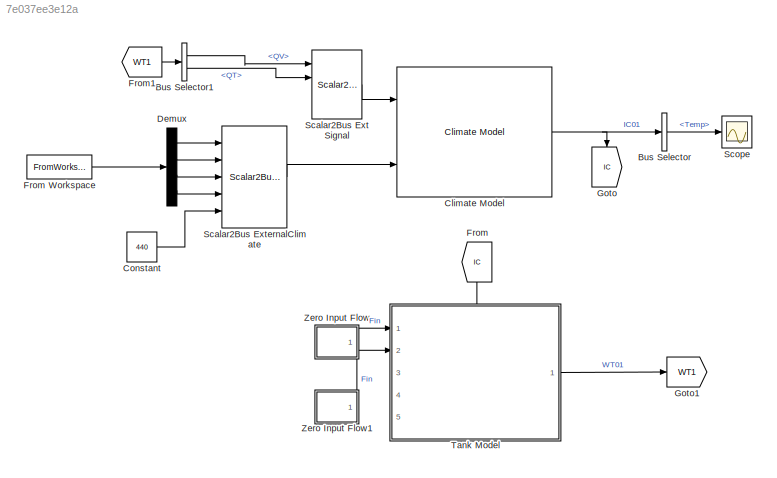
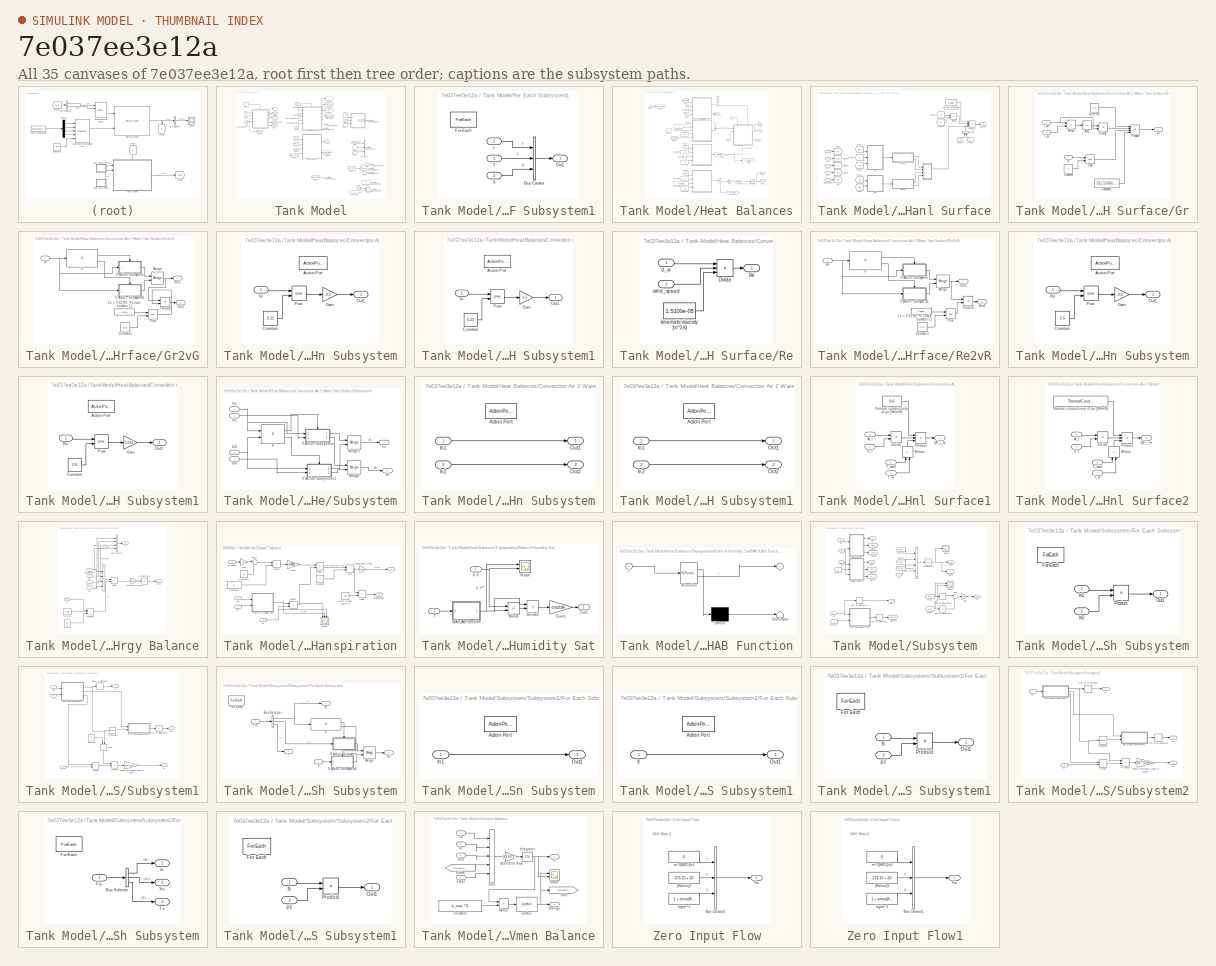
[diagram: thumbnail index - all 35 canvases of the model, root first then tree order]
MODEL slx_7e037ee3e12a
KIND model
CONFIG AbsTol = auto
CONFIG EnableMultiTasking = off
CONFIG FixedStep = auto
CONFIG MaxStep = auto
CONFIG MinStep = auto
CONFIG RelTol = 1e-3
CONFIG SampleTimeConstraint = Unconstrained
CONFIG SolverName = VariableStepAuto
CONFIG StartTime = 0.0
CONFIG StopTime = 10.0
BLOCK [BusSelector] Bus Selector
  OutputSignals = Temp
  Ports = [1, 1]
BLOCK [BusSelector] Bus Selector1
  OutputSignals = QV,QT
  Ports = [1, 2]
BLOCK [Reference] Climate Model  REF=HORTISIM/Climate/Models/Climate Model
  Ports = [3, 1]
  SourceBlock = HORTISIM/Climate/Models/Climate Model
  SourceProductName = Horti Simulator
BLOCK [Constant] Constant
  Value = 440
BLOCK [Demux] Demux
  Ports = [1, 4]
BLOCK [From] From
  GotoTag = IC
  NameLocation = left
BLOCK [FromWorkspace] From Workspace
  VariableName = S01_EC
BLOCK [From] From1
  GotoTag = WT1
BLOCK [Goto] Goto
  GotoTag = IC
  NameLocation = left
BLOCK [Goto] Goto1
  GotoTag = WT1
BLOCK [Reference] Scalar2Bus Ext Signal   REF=HORTISIM/Other 
Functions/Scalar2Bus
Ext Signal 

  Ports = [4, 1]
  SourceBlock = HORTISIM/Other \nFunctions/Scalar2Bus\nExt Signal
  SourceProductName = Horti Simulator
  SourceType = SubSystem
BLOCK [Reference] Scalar2Bus ExternalClimate  REF=HORTISIM/Other 
Functions/Scalar2Bus
ExternalClimate
  Ports = [5, 1]
  SourceBlock = HORTISIM/Other \nFunctions/Scalar2Bus\nExternalClimate
  SourceProductName = Horti Simulator
  SourceType = SubSystem
BLOCK [Scope] Scope
  Floating = off
  NumInputPorts = 1
  Ports = [1]
  ScopeSpecificationString = Simulink.scopes.TimeScopeBlockCfg('CurrentConfiguration', extmgr.ConfigurationSet(extmgr.Configuration('Core','General UI',true),extmgr.Configuration('Core','Source UI',true),extmgr.Configuration('Sources','WiredSimulink',true),extmgr.Configuration('Visuals','Time Domain',true,'SerializedDisplays',{struct('MinYLimReal','280.24378','MaxYLimReal','319.56009','YLabelReal','','MinYLimMag','280.24378',...<+1406ch>
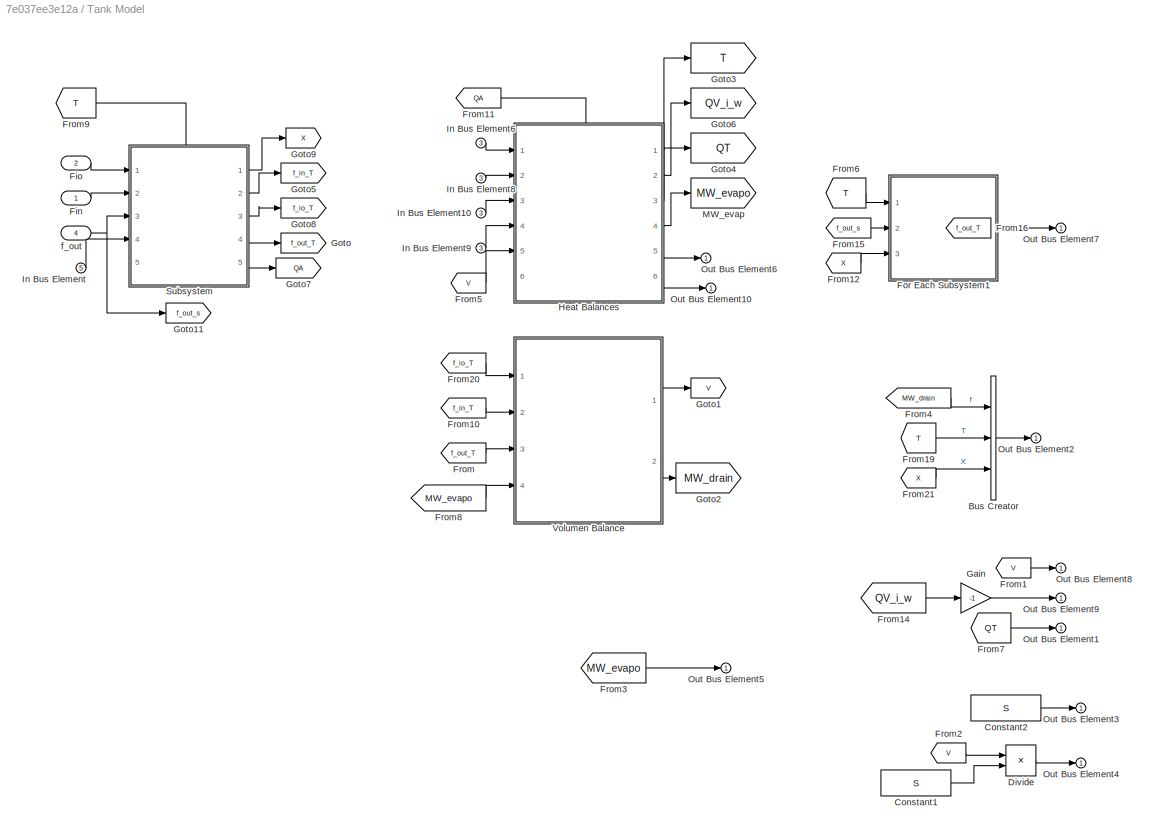
BLOCK [SubSystem] Tank Model
  AncestorBlock = HORTISIM/Aquaculture/Models/Tank Model
  PortSchema = {"entries":[{"content":{"sides":[{"content":{"connectorIds":["In1","In2"]},"type":"ConnectorPlacement.EquallySpacedRectSide","uuid":"0362ec3b-d1e8-482f-a4df-c7eb6405d3bb"},{"content":{"connectorIds":["Out1"],"side":"RIGHT"},"type":"ConnectorPlacement.EquallySpacedRectSide","uuid":"883d7bea-5680-4a36-94aa-1bdc656ec6e4"},{"content":{"connectorIds":["In3"],"side":"TOP"},"type":"ConnectorPlacement.Equ...<+406ch>
  Ports = [5, 1]
  RequestExecContextInheritance = off
BLOCK [BusCreator] Tank Model/Bus Creator
  DisplayOption = bar
  InheritFromInputs = on
  Inputs = 3
  NonVirtualBus = on
  OutDataTypeStr = Bus: FLOW
  Ports = [3, 1]
BLOCK [Constant] Tank Model/Constant1
  Value = S
BLOCK [Constant] Tank Model/Constant2
  Value = S
BLOCK [Product] Tank Model/Divide
  Inputs = */
  Ports = [2, 1]
BLOCK [Inport] Tank Model/Fin
BLOCK [Inport] Tank Model/Fio
  Port = 2
BLOCK [SubSystem] Tank Model/For Each Subsystem1
  Ports = [3, 1]
  RequestExecContextInheritance = off
  TreatAsAtomicUnit = on
BLOCK [BusCreator] Tank Model/For Each Subsystem1/Bus Creator
  DisplayOption = bar
  InheritFromInputs = on
  Inputs = 3
  NonVirtualBus = on
  OutDataTypeStr = Bus: FLOW
  Ports = [3, 1]
BLOCK [ForEach] Tank Model/For Each Subsystem1/For Each
  DisableCoverage = on
  Ports = []
BLOCK [Outport] Tank Model/For Each Subsystem1/Out1
  ConcatenationDimension = 1
BLOCK [Inport] Tank Model/For Each Subsystem1/T
BLOCK [Inport] Tank Model/For Each Subsystem1/X
  Port = 3
BLOCK [Inport] Tank Model/For Each Subsystem1/f
  Partition = on
  PartitionDimension = 1
  PartitionOffset = 0
  PartitionWidth = 1
  Port = 2
BLOCK [From] Tank Model/From
  GotoTag = f_out_T
BLOCK [From] Tank Model/From1
  GotoTag = V
BLOCK [From] Tank Model/From10
  GotoTag = f_in_T
BLOCK [From] Tank Model/From11
  GotoTag = QA
BLOCK [From] Tank Model/From12
  GotoTag = X
BLOCK [From] Tank Model/From14
  GotoTag = QV_i_w
BLOCK [From] Tank Model/From15
  GotoTag = f_out_s
BLOCK [From] Tank Model/From16
  GotoTag = f_out_T
BLOCK [From] Tank Model/From19
  GotoTag = T
BLOCK [From] Tank Model/From2
  GotoTag = V
BLOCK [From] Tank Model/From20
  GotoTag = f_io_T
BLOCK [From] Tank Model/From21
  GotoTag = X
BLOCK [From] Tank Model/From3
  GotoTag = MW_evapo
BLOCK [From] Tank Model/From4
  GotoTag = MW_drain
BLOCK [From] Tank Model/From5
  GotoTag = V
BLOCK [From] Tank Model/From6
  GotoTag = T
BLOCK [From] Tank Model/From7
  GotoTag = QT
BLOCK [From] Tank Model/From8
  GotoTag = MW_evapo
BLOCK [From] Tank Model/From9
  GotoTag = T
BLOCK [Gain] Tank Model/Gain
  Gain = -1
BLOCK [Goto] Tank Model/Goto
  GotoTag = f_out_T
BLOCK [Goto] Tank Model/Goto1
  GotoTag = V
BLOCK [Goto] Tank Model/Goto11
  GotoTag = f_out_s
BLOCK [Goto] Tank Model/Goto2
  GotoTag = MW_drain
BLOCK [Goto] Tank Model/Goto3
  GotoTag = T
BLOCK [Goto] Tank Model/Goto4
  GotoTag = QT
BLOCK [Goto] Tank Model/Goto5
  GotoTag = f_in_T
BLOCK [Goto] Tank Model/Goto6
  GotoTag = QV_i_w
BLOCK [Goto] Tank Model/Goto7
  GotoTag = QA
BLOCK [Goto] Tank Model/Goto8
  GotoTag = f_io_T
BLOCK [Goto] Tank Model/Goto9
  GotoTag = X
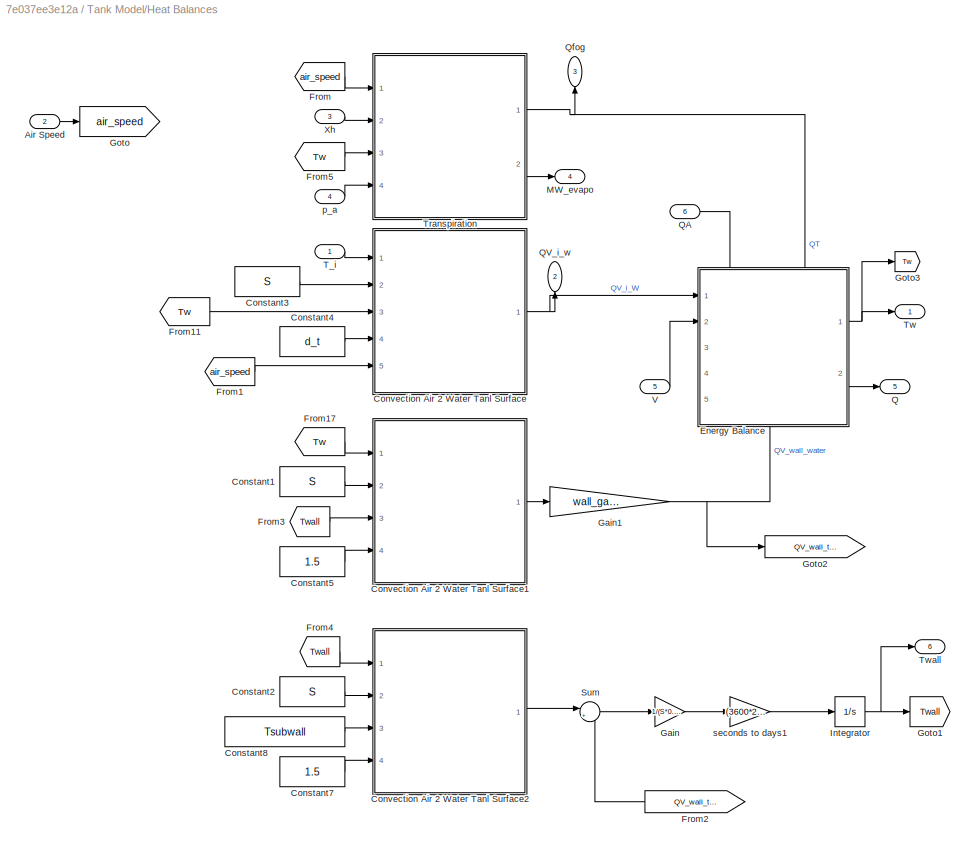
BLOCK [SubSystem] Tank Model/Heat Balances
  PortSchema = {"entries":[{"content":{"sides":[{"content":{"connectorIds":["In1","In2","In3","In4","In5"]},"type":"ConnectorPlacement.EquallySpacedRectSide","uuid":"26e11b66-a1c5-48e2-ab79-f5870a5f4091"},{"content":{"connectorIds":["Out1","Out2","Out3","Out4","Out5","Out6"],"side":"RIGHT"},"type":"ConnectorPlacement.EquallySpacedRectSide","uuid":"91e62b2d-44c5-4f75-9dd0-4a25b0cbf311"},{"content":{"connectorIds"...<+304ch>
  Ports = [6, 6]
  RequestExecContextInheritance = off
BLOCK [Inport] Tank Model/Heat Balances/Air Speed
  Port = 2
BLOCK [Constant] Tank Model/Heat Balances/Constant1
  Value = S
BLOCK [Constant] Tank Model/Heat Balances/Constant2
  Value = S
BLOCK [Constant] Tank Model/Heat Balances/Constant3
  Value = S
BLOCK [Constant] Tank Model/Heat Balances/Constant4
  Value = d_t
BLOCK [Constant] Tank Model/Heat Balances/Constant5
  Value = 1.5
BLOCK [Constant] Tank Model/Heat Balances/Constant7
  Value = 1.5
BLOCK [Constant] Tank Model/Heat Balances/Constant8
  Value = Tsubwall
BLOCK [SubSystem] Tank Model/Heat Balances/Convection Air 2 Water Tanl Surface
  Ports = [5, 1]
  RequestExecContextInheritance = off
BLOCK [Inport] Tank Model/Heat Balances/Convection Air 2 Water Tanl Surface/A_t
  Port = 2
BLOCK [Product] Tank Model/Heat Balances/Convection Air 2 Water Tanl Surface/Divide
  Inputs = */
  Ports = [2, 1]
BLOCK [From] Tank Model/Heat Balances/Convection Air 2 Water Tanl Surface/From
  GotoTag = ws
BLOCK [From] Tank Model/Heat Balances/Convection Air 2 Water Tanl Surface/From1
  GotoTag = d_t
BLOCK [From] Tank Model/Heat Balances/Convection Air 2 Water Tanl Surface/From2
  GotoTag = T_w
BLOCK [From] Tank Model/Heat Balances/Convection Air 2 Water Tanl Surface/From3
  GotoTag = T_i
BLOCK [From] Tank Model/Heat Balances/Convection Air 2 Water Tanl Surface/From4
  GotoTag = d_t
BLOCK [From] Tank Model/Heat Balances/Convection Air 2 Water Tanl Surface/From5
  GotoTag = A_t
BLOCK [From] Tank Model/Heat Balances/Convection Air 2 Water Tanl Surface/From6
  GotoTag = d_t
BLOCK [From] Tank Model/Heat Balances/Convection Air 2 Water Tanl Surface/From7
  GotoTag = T_w
  NameLocation = right
BLOCK [From] Tank Model/Heat Balances/Convection Air 2 Water Tanl Surface/From8
  GotoTag = T_i
  NameLocation = right
BLOCK [Goto] Tank Model/Heat Balances/Convection Air 2 Water Tanl Surface/Goto
  GotoTag = T_i
BLOCK [Goto] Tank Model/Heat Balances/Convection Air 2 Water Tanl Surface/Goto1
  GotoTag = T_w
BLOCK [Goto] Tank Model/Heat Balances/Convection Air 2 Water Tanl Surface/Goto2
  GotoTag = A_t
BLOCK [Goto] Tank Model/Heat Balances/Convection Air 2 Water Tanl Surface/Goto3
  GotoTag = d_t
BLOCK [SubSystem] Tank Model/Heat Balances/Convection Air 2 Water Tanl Surface/Gr
  Ports = [3, 1]
  RequestExecContextInheritance = off
BLOCK [Abs] Tank Model/Heat Balances/Convection Air 2 Water Tanl Surface/Gr/Abs
  SaturateOnIntegerOverflow = off
BLOCK [Constant] Tank Model/Heat Balances/Convection Air 2 Water Tanl Surface/Gr/Constant
  Value = 3
BLOCK [Constant] Tank Model/Heat Balances/Convection Air 2 Water Tanl Surface/Gr/Constant1
  Value = 1/(1.5100e-05)^2
BLOCK [Product] Tank Model/Heat Balances/Convection Air 2 Water Tanl Surface/Gr/Divide
  Inputs = */
  Ports = [2, 1]
BLOCK [Outport] Tank Model/Heat Balances/Convection Air 2 Water Tanl Surface/Gr/Gr
BLOCK [Sum] Tank Model/Heat Balances/Convection Air 2 Water Tanl Surface/Gr/Minus
  IconShape = rectangular
  Inputs = +-
  Ports = [2, 1]
BLOCK [Math] Tank Model/Heat Balances/Convection Air 2 Water Tanl Surface/Gr/Pow
  Operator = pow
  Ports = [2, 1]
  RndMeth = Zero
  SignedPower = on
BLOCK [Product] Tank Model/Heat Balances/Convection Air 2 Water Tanl Surface/Gr/Product
  Inputs = 4
  Ports = [4, 1]
BLOCK [Inport] Tank Model/Heat Balances/Convection Air 2 Water Tanl Surface/Gr/T_air
  Port = 2
BLOCK [Inport] Tank Model/Heat Balances/Convection Air 2 Water Tanl Surface/Gr/T_w
  Port = 3
BLOCK [Inport] Tank Model/Heat Balances/Convection Air 2 Water Tanl Surface/Gr/d
BLOCK [Constant] Tank Model/Heat Balances/Convection Air 2 Water Tanl Surface/Gr/g [m//s^2]
  Value = 9.8
BLOCK [SubSystem] Tank Model/Heat Balances/Convection Air 2 Water Tanl Surface/Gr2vG
  Ports = [1, 2]
  RequestExecContextInheritance = off
BLOCK [Constant] Tank Model/Heat Balances/Convection Air 2 Water Tanl Surface/Gr2vG/Constant
  Value = 0.25
BLOCK [Inport] Tank Model/Heat Balances/Convection Air 2 Water Tanl Surface/Gr2vG/Gr
BLOCK [If] Tank Model/Heat Balances/Convection Air 2 Water Tanl Surface/Gr2vG/If
  IfExpression = u1 < 1e5
  Ports = [1, 2]
BLOCK [SubSystem] Tank Model/Heat Balances/Convection Air 2 Water Tanl Surface/Gr2vG/If Action Subsystem
  Ports = [1, 1, 0, 0, 0, 0, 0, 1]
  RequestExecContextInheritance = off
  TreatAsAtomicUnit = on
BLOCK [ActionPort] Tank Model/Heat Balances/Convection Air 2 Water Tanl Surface/Gr2vG/If Action Subsystem/Action Port
  ActionPortLabel = if(u1 < 1e5)
BLOCK [Constant] Tank Model/Heat Balances/Convection Air 2 Water Tanl Surface/Gr2vG/If Action Subsystem/Constant
  Value = 0.25
BLOCK [Gain] Tank Model/Heat Balances/Convection Air 2 Water Tanl Surface/Gr2vG/If Action Subsystem/Gain
  Gain = 0.5
BLOCK [Inport] Tank Model/Heat Balances/Convection Air 2 Water Tanl Surface/Gr2vG/If Action Subsystem/Gr
BLOCK [Outport] Tank Model/Heat Balances/Convection Air 2 Water Tanl Surface/Gr2vG/If Action Subsystem/Out1
BLOCK [Math] Tank Model/Heat Balances/Convection Air 2 Water Tanl Surface/Gr2vG/If Action Subsystem/Pow
  Operator = pow
  Ports = [2, 1]
  RndMeth = Zero
  SignedPower = on
BLOCK [SubSystem] Tank Model/Heat Balances/Convection Air 2 Water Tanl Surface/Gr2vG/If Action Subsystem1
  Ports = [1, 1, 0, 0, 0, 0, 0, 1]
  RequestExecContextInheritance = off
  TreatAsAtomicUnit = on
BLOCK [ActionPort] Tank Model/Heat Balances/Convection Air 2 Water Tanl Surface/Gr2vG/If Action Subsystem1/Action Port
  ActionPortLabel = else
BLOCK [Constant] Tank Model/Heat Balances/Convection Air 2 Water Tanl Surface/Gr2vG/If Action Subsystem1/Constant
  Value = 0.25
BLOCK [Gain] Tank Model/Heat Balances/Convection Air 2 Water Tanl Surface/Gr2vG/If Action Subsystem1/Gain
  Gain = 0.5
BLOCK [Inport] Tank Model/Heat Balances/Convection Air 2 Water Tanl Surface/Gr2vG/If Action Subsystem1/Gr
BLOCK [Outport] Tank Model/Heat Balances/Convection Air 2 Water Tanl Surface/Gr2vG/If Action Subsystem1/Out1
BLOCK [Math] Tank Model/Heat Balances/Convection Air 2 Water Tanl Surface/Gr2vG/If Action Subsystem1/Pow
  Operator = pow
  Ports = [2, 1]
  RndMeth = Zero
  SignedPower = on
BLOCK [Constant] Tank Model/Heat Balances/Convection Air 2 Water Tanl Surface/Gr2vG/Le = 0.8190; % Lewis number [-] 
  Value = 0.8190
BLOCK [Merge] Tank Model/Heat Balances/Convection Air 2 Water Tanl Surface/Gr2vG/Merge
  Ports = [2, 1]
BLOCK [Outport] Tank Model/Heat Balances/Convection Air 2 Water Tanl Surface/Gr2vG/Out1
BLOCK [Outport] Tank Model/Heat Balances/Convection Air 2 Water Tanl Surface/Gr2vG/Out2
  Port = 2
BLOCK [Math] Tank Model/Heat Balances/Convection Air 2 Water Tanl Surface/Gr2vG/Pow
  Operator = pow
  Ports = [2, 1]
  RndMeth = Zero
  SignedPower = on
BLOCK [Product] Tank Model/Heat Balances/Convection Air 2 Water Tanl Surface/Gr2vG/Product
  Ports = [2, 1]
BLOCK [Sum] Tank Model/Heat Balances/Convection Air 2 Water Tanl Surface/Minus
  IconShape = rectangular
  Inputs = -+
  NameLocation = right
  Ports = [2, 1]
BLOCK [Product] Tank Model/Heat Balances/Convection Air 2 Water Tanl Surface/Product
  Inputs = 4
  Ports = [4, 1]
BLOCK [Outport] Tank Model/Heat Balances/Convection Air 2 Water Tanl Surface/QV_i_w
BLOCK [SubSystem] Tank Model/Heat Balances/Convection Air 2 Water Tanl Surface/Re
  Ports = [2, 1]
  RequestExecContextInheritance = off
BLOCK [Product] Tank Model/Heat Balances/Convection Air 2 Water Tanl Surface/Re/Divide
  Inputs = **/
  Ports = [3, 1]
BLOCK [Outport] Tank Model/Heat Balances/Convection Air 2 Water Tanl Surface/Re/Re
BLOCK [Inport] Tank Model/Heat Balances/Convection Air 2 Water Tanl Surface/Re/d_w
BLOCK [Constant] Tank Model/Heat Balances/Convection Air 2 Water Tanl Surface/Re/kinematic viscosity [m^2//s]
  Value = 1.5100e-05
BLOCK [Inport] Tank Model/Heat Balances/Convection Air 2 Water Tanl Surface/Re/wind_speed
  Port = 2
BLOCK [SubSystem] Tank Model/Heat Balances/Convection Air 2 Water Tanl Surface/Re2vR
  Ports = [1, 2]
  RequestExecContextInheritance = off
BLOCK [Constant] Tank Model/Heat Balances/Convection Air 2 Water Tanl Surface/Re2vR/Constant
  Value = 0.33
BLOCK [If] Tank Model/Heat Balances/Convection Air 2 Water Tanl Surface/Re2vR/If
  IfExpression = u1 < 2e4
  Ports = [1, 2]
BLOCK [SubSystem] Tank Model/Heat Balances/Convection Air 2 Water Tanl Surface/Re2vR/If Action Subsystem
  Ports = [1, 1, 0, 0, 0, 0, 0, 1]
  RequestExecContextInheritance = off
  TreatAsAtomicUnit = on
BLOCK [ActionPort] Tank Model/Heat Balances/Convection Air 2 Water Tanl Surface/Re2vR/If Action Subsystem/Action Port
  ActionPortLabel = if(u1 < 2e4)
BLOCK [Constant] Tank Model/Heat Balances/Convection Air 2 Water Tanl Surface/Re2vR/If Action Subsystem/Constant
  Value = 0.5
BLOCK [Gain] Tank Model/Heat Balances/Convection Air 2 Water Tanl Surface/Re2vR/If Action Subsystem/Gain
  Gain = 0.6
BLOCK [Outport] Tank Model/Heat Balances/Convection Air 2 Water Tanl Surface/Re2vR/If Action Subsystem/Out1
BLOCK [Math] Tank Model/Heat Balances/Convection Air 2 Water Tanl Surface/Re2vR/If Action Subsystem/Pow
  Operator = pow
  Ports = [2, 1]
  RndMeth = Zero
  SignedPower = on
BLOCK [Inport] Tank Model/Heat Balances/Convection Air 2 Water Tanl Surface/Re2vR/If Action Subsystem/Re
BLOCK [SubSystem] Tank Model/Heat Balances/Convection Air 2 Water Tanl Surface/Re2vR/If Action Subsystem1
  Ports = [1, 1, 0, 0, 0, 0, 0, 1]
  RequestExecContextInheritance = off
  TreatAsAtomicUnit = on
BLOCK [ActionPort] Tank Model/Heat Balances/Convection Air 2 Water Tanl Surface/Re2vR/If Action Subsystem1/Action Port
  ActionPortLabel = else
BLOCK [Constant] Tank Model/Heat Balances/Convection Air 2 Water Tanl Surface/Re2vR/If Action Subsystem1/Constant
  Value = 0.8
BLOCK [Gain] Tank Model/Heat Balances/Convection Air 2 Water Tanl Surface/Re2vR/If Action Subsystem1/Gain
  Gain = 0.032
BLOCK [Outport] Tank Model/Heat Balances/Convection Air 2 Water Tanl Surface/Re2vR/If Action Subsystem1/Out1
BLOCK [Math] Tank Model/Heat Balances/Convection Air 2 Water Tanl Surface/Re2vR/If Action Subsystem1/Pow
  Operator = pow
  Ports = [2, 1]
  RndMeth = Zero
  SignedPower = on
BLOCK [Inport] Tank Model/Heat Balances/Convection Air 2 Water Tanl Surface/Re2vR/If Action Subsystem1/Re
BLOCK [Constant] Tank Model/Heat Balances/Convection Air 2 Water Tanl Surface/Re2vR/Le = 0.8190; % Lewis number [-] 
  Value = 0.8190
BLOCK [Merge] Tank Model/Heat Balances/Convection Air 2 Water Tanl Surface/Re2vR/Merge
  Ports = [2, 1]
BLOCK [Outport] Tank Model/Heat Balances/Convection Air 2 Water Tanl Surface/Re2vR/Out1
BLOCK [Outport] Tank Model/Heat Balances/Convection Air 2 Water Tanl Surface/Re2vR/Out2
  Port = 2
BLOCK [Math] Tank Model/Heat Balances/Convection Air 2 Water Tanl Surface/Re2vR/Pow
  Operator = pow
  Ports = [2, 1]
  RndMeth = Zero
  SignedPower = on
BLOCK [Product] Tank Model/Heat Balances/Convection Air 2 Water Tanl Surface/Re2vR/Product
  Ports = [2, 1]
BLOCK [Inport] Tank Model/Heat Balances/Convection Air 2 Water Tanl Surface/Re2vR/Re
BLOCK [SubSystem] Tank Model/Heat Balances/Convection Air 2 Water Tanl Surface/Subsystem
  Ports = [4, 2]
  RequestExecContextInheritance = off
BLOCK [If] Tank Model/Heat Balances/Convection Air 2 Water Tanl Surface/Subsystem/If
  IfExpression = u1 > u2
  NumInputs = 2
  Ports = [2, 2]
BLOCK [SubSystem] Tank Model/Heat Balances/Convection Air 2 Water Tanl Surface/Subsystem/If Action Subsystem
  Ports = [2, 2, 0, 0, 0, 0, 0, 1]
  RequestExecContextInheritance = off
  TreatAsAtomicUnit = on
BLOCK [ActionPort] Tank Model/Heat Balances/Convection Air 2 Water Tanl Surface/Subsystem/If Action Subsystem/Action Port
  ActionPortLabel = if(u1 > u2)
BLOCK [Inport] Tank Model/Heat Balances/Convection Air 2 Water Tanl Surface/Subsystem/If Action Subsystem/In1
BLOCK [Inport] Tank Model/Heat Balances/Convection Air 2 Water Tanl Surface/Subsystem/If Action Subsystem/In2
  Port = 2
BLOCK [Outport] Tank Model/Heat Balances/Convection Air 2 Water Tanl Surface/Subsystem/If Action Subsystem/Out1
BLOCK [Outport] Tank Model/Heat Balances/Convection Air 2 Water Tanl Surface/Subsystem/If Action Subsystem/Out2
  Port = 2
BLOCK [SubSystem] Tank Model/Heat Balances/Convection Air 2 Water Tanl Surface/Subsystem/If Action Subsystem1
  Ports = [2, 2, 0, 0, 0, 0, 0, 1]
  RequestExecContextInheritance = off
  TreatAsAtomicUnit = on
BLOCK [ActionPort] Tank Model/Heat Balances/Convection Air 2 Water Tanl Surface/Subsystem/If Action Subsystem1/Action Port
  ActionPortLabel = else
BLOCK [Inport] Tank Model/Heat Balances/Convection Air 2 Water Tanl Surface/Subsystem/If Action Subsystem1/In1
BLOCK [Inport] Tank Model/Heat Balances/Convection Air 2 Water Tanl Surface/Subsystem/If Action Subsystem1/In2
  Port = 2
BLOCK [Outport] Tank Model/Heat Balances/Convection Air 2 Water Tanl Surface/Subsystem/If Action Subsystem1/Out1
BLOCK [Outport] Tank Model/Heat Balances/Convection Air 2 Water Tanl Surface/Subsystem/If Action Subsystem1/Out2
  Port = 2
BLOCK [Inport] Tank Model/Heat Balances/Convection Air 2 Water Tanl Surface/Subsystem/In1
BLOCK [Inport] Tank Model/Heat Balances/Convection Air 2 Water Tanl Surface/Subsystem/In2
  Port = 2
BLOCK [Inport] Tank Model/Heat Balances/Convection Air 2 Water Tanl Surface/Subsystem/In3
  Port = 3
BLOCK [Inport] Tank Model/Heat Balances/Convection Air 2 Water Tanl Surface/Subsystem/In4
  Port = 4
BLOCK [Merge] Tank Model/Heat Balances/Convection Air 2 Water Tanl Surface/Subsystem/Merge
  Ports = [2, 1]
BLOCK [Merge] Tank Model/Heat Balances/Convection Air 2 Water Tanl Surface/Subsystem/Merge1
  Ports = [2, 1]
BLOCK [Outport] Tank Model/Heat Balances/Convection Air 2 Water Tanl Surface/Subsystem/nu
BLOCK [Outport] Tank Model/Heat Balances/Convection Air 2 Water Tanl Surface/Subsystem/sh
  Port = 2
BLOCK [Inport] Tank Model/Heat Balances/Convection Air 2 Water Tanl Surface/T_i
BLOCK [Inport] Tank Model/Heat Balances/Convection Air 2 Water Tanl Surface/T_w
  Port = 3
BLOCK [Inport] Tank Model/Heat Balances/Convection Air 2 Water Tanl Surface/d_t
  Port = 4
BLOCK [Constant] Tank Model/Heat Balances/Convection Air 2 Water Tanl Surface/thermal conductivity of air [W//m//K] 
  Value = 0.0250
BLOCK [Inport] Tank Model/Heat Balances/Convection Air 2 Water Tanl Surface/wind_speed
  Port = 5
BLOCK [Goto] Tank Model/Heat Balances/Convection Air 2 Water Tanl Surface/ws
  GotoTag = ws
BLOCK [SubSystem] Tank Model/Heat Balances/Convection Air 2 Water Tanl Surface1
  Ports = [4, 1]
  RequestExecContextInheritance = off
BLOCK [Inport] Tank Model/Heat Balances/Convection Air 2 Water Tanl Surface1/A_t
  Port = 2
BLOCK [Product] Tank Model/Heat Balances/Convection Air 2 Water Tanl Surface1/Divide
  Inputs = */
  Ports = [2, 1]
BLOCK [Sum] Tank Model/Heat Balances/Convection Air 2 Water Tanl Surface1/Minus
  IconShape = rectangular
  Inputs = +-
  NameLocation = right
  Ports = [2, 1]
BLOCK [Product] Tank Model/Heat Balances/Convection Air 2 Water Tanl Surface1/Product
  Inputs = 3
  Ports = [3, 1]
BLOCK [Outport] Tank Model/Heat Balances/Convection Air 2 Water Tanl Surface1/QV_i_w
BLOCK [Inport] Tank Model/Heat Balances/Convection Air 2 Water Tanl Surface1/T_w
BLOCK [Inport] Tank Model/Heat Balances/Convection Air 2 Water Tanl Surface1/T_wall
  Port = 3
BLOCK [Inport] Tank Model/Heat Balances/Convection Air 2 Water Tanl Surface1/d_t
  Port = 4
BLOCK [Constant] Tank Model/Heat Balances/Convection Air 2 Water Tanl Surface1/thermal conductivity of air [W//m//K] 
  Value = 0.6
BLOCK [SubSystem] Tank Model/Heat Balances/Convection Air 2 Water Tanl Surface2
  Ports = [4, 1]
  RequestExecContextInheritance = off
BLOCK [Inport] Tank Model/Heat Balances/Convection Air 2 Water Tanl Surface2/A_t
  Port = 2
BLOCK [Product] Tank Model/Heat Balances/Convection Air 2 Water Tanl Surface2/Divide
  Inputs = */
  Ports = [2, 1]
BLOCK [Sum] Tank Model/Heat Balances/Convection Air 2 Water Tanl Surface2/Minus
  IconShape = rectangular
  Inputs = +-
  NameLocation = right
  Ports = [2, 1]
BLOCK [Product] Tank Model/Heat Balances/Convection Air 2 Water Tanl Surface2/Product
  Inputs = 3
  Ports = [3, 1]
BLOCK [Outport] Tank Model/Heat Balances/Convection Air 2 Water Tanl Surface2/QV_i_w
BLOCK [Inport] Tank Model/Heat Balances/Convection Air 2 Water Tanl Surface2/T_w
BLOCK [Inport] Tank Model/Heat Balances/Convection Air 2 Water Tanl Surface2/T_wall
  Port = 3
BLOCK [Inport] Tank Model/Heat Balances/Convection Air 2 Water Tanl Surface2/d_t
  Port = 4
BLOCK [Constant] Tank Model/Heat Balances/Convection Air 2 Water Tanl Surface2/thermal conductivity of air [W//m//K] 
  Value = ThermalConductivityWall
BLOCK [SubSystem] Tank Model/Heat Balances/Energy Balance
  PortSchema = {"entries":[{"content":{"sides":[{"content":{"connectorIds":["In1","In2"]},"type":"ConnectorPlacement.EquallySpacedRectSide","uuid":"351dfee1-09c7-4321-9b33-423602220319"},{"content":{"connectorIds":["Out1","Out2"],"side":"RIGHT"},"type":"ConnectorPlacement.EquallySpacedRectSide","uuid":"92d6c083-190c-455c-8aef-b1925742528e"},{"content":{"connectorIds":["In3","In4"],"side":"TOP"},"type":"Connector...<+413ch>
  Ports = [5, 2]
  RequestExecContextInheritance = off
BLOCK [BusCreator] Tank Model/Heat Balances/Energy Balance/Bus Creator
  DisplayOption = bar
  InheritFromInputs = on
  Inputs = 4
  Ports = [4, 1]
BLOCK [Product] Tank Model/Heat Balances/Energy Balance/Divide
  Inputs = */
  Ports = [2, 1]
BLOCK [Integrator] Tank Model/Heat Balances/Energy Balance/Integrator1
  InitialCondition = T
  Ports = [1, 1]
BLOCK [Constant] Tank Model/Heat Balances/Energy Balance/J//(kg.K)
  Value = 4192
BLOCK [Outport] Tank Model/Heat Balances/Energy Balance/Out1
BLOCK [Product] Tank Model/Heat Balances/Energy Balance/Product
  Inputs = 3
  Ports = [3, 1]
BLOCK [Outport] Tank Model/Heat Balances/Energy Balance/Q
  Port = 2
BLOCK [Inport] Tank Model/Heat Balances/Energy Balance/QA
  Port = 3
BLOCK [Inport] Tank Model/Heat Balances/Energy Balance/QT
  Port = 4
BLOCK [Inport] Tank Model/Heat Balances/Energy Balance/QV_i_W
BLOCK [Inport] Tank Model/Heat Balances/Energy Balance/QV_wall_water
  Port = 5
BLOCK [Sum] Tank Model/Heat Balances/Energy Balance/Sum1
  IconShape = rectangular
  Inputs = +-++
  Ports = [4, 1]
BLOCK [Inport] Tank Model/Heat Balances/Energy Balance/V
  Port = 2
BLOCK [Constant] Tank Model/Heat Balances/Energy Balance/kg//m^3
  Value = 997
BLOCK [Gain] Tank Model/Heat Balances/Energy Balance/seconds to days1
  Gain = (3600*24)
BLOCK [From] Tank Model/Heat Balances/From
  GotoTag = air_speed
BLOCK [From] Tank Model/Heat Balances/From1
  GotoTag = air_speed
BLOCK [From] Tank Model/Heat Balances/From11
  GotoTag = Tw
BLOCK [From] Tank Model/Heat Balances/From17
  GotoTag = Tw
BLOCK [From] Tank Model/Heat Balances/From2
  GotoTag = QV_wall_tank
  NameLocation = top
BLOCK [From] Tank Model/Heat Balances/From3
  GotoTag = Twall
BLOCK [From] Tank Model/Heat Balances/From4
  GotoTag = Twall
BLOCK [From] Tank Model/Heat Balances/From5
  GotoTag = Tw
BLOCK [Gain] Tank Model/Heat Balances/Gain
  Gain = 1/(S*0.1*1e-3)
BLOCK [Gain] Tank Model/Heat Balances/Gain1
  Gain = wall_gain
BLOCK [Goto] Tank Model/Heat Balances/Goto
  GotoTag = air_speed
BLOCK [Goto] Tank Model/Heat Balances/Goto1
  GotoTag = Twall
BLOCK [Goto] Tank Model/Heat Balances/Goto2
  GotoTag = QV_wall_tank
BLOCK [Goto] Tank Model/Heat Balances/Goto3
  GotoTag = Tw
BLOCK [Integrator] Tank Model/Heat Balances/Integrator
  InitialCondition = Twall
  Ports = [1, 1]
BLOCK [Outport] Tank Model/Heat Balances/MW_evapo
  Port = 4
BLOCK [Outport] Tank Model/Heat Balances/Q
  Port = 5
BLOCK [Inport] Tank Model/Heat Balances/QA
  Port = 6
BLOCK [Outport] Tank Model/Heat Balances/QV_i_w
  NameLocation = right
  Port = 2
BLOCK [Outport] Tank Model/Heat Balances/Qfog
  NameLocation = right
  Port = 3
BLOCK [Sum] Tank Model/Heat Balances/Sum
  Inputs = |+-
  Ports = [2, 1]
BLOCK [Inport] Tank Model/Heat Balances/T_i
BLOCK [SubSystem] Tank Model/Heat Balances/Transpiration
  Ports = [4, 2]
  RequestExecContextInheritance = off
BLOCK [Inport] Tank Model/Heat Balances/Transpiration/Air Speed
BLOCK [Constant] Tank Model/Heat Balances/Transpiration/Constant
  Value = 0
BLOCK [Constant] Tank Model/Heat Balances/Transpiration/Constant1
  Value = 25
BLOCK [Constant] Tank Model/Heat Balances/Transpiration/Constant2
  Value = S
BLOCK [Product] Tank Model/Heat Balances/Transpiration/Divide
  Inputs = */
  Ports = [2, 1]
BLOCK [Outport] Tank Model/Heat Balances/Transpiration/Evaporation
  Port = 2
BLOCK [Gain] Tank Model/Heat Balances/Transpiration/Gain
  Gain = 19
BLOCK [Gain] Tank Model/Heat Balances/Transpiration/Gain1
  Gain = 1/3600
BLOCK [Gain] Tank Model/Heat Balances/Transpiration/Mass2Heat [J//kg]
  Gain = 2437000
BLOCK [MinMax] Tank Model/Heat Balances/Transpiration/Max
  Function = max
  Inputs = 2
  Ports = [2, 1]
BLOCK [Sum] Tank Model/Heat Balances/Transpiration/Minus1
  IconShape = rectangular
  Inputs = +-
  Ports = [2, 1]
BLOCK [Product] Tank Model/Heat Balances/Transpiration/Product
  Ports = [2, 1]
BLOCK [Product] Tank Model/Heat Balances/Transpiration/Product1
  Ports = [2, 1]
BLOCK [Outport] Tank Model/Heat Balances/Transpiration/QT
BLOCK [SubSystem] Tank Model/Heat Balances/Transpiration/Ratio of Humidity Sat
  Ports = [2, 1]
  RequestExecContextInheritance = off
BLOCK [Product] Tank Model/Heat Balances/Transpiration/Ratio of Humidity Sat/Divide2
  Inputs = */
  Ports = [2, 1]
BLOCK [Gain] Tank Model/Heat Balances/Transpiration/Ratio of Humidity Sat/Gain1
  Gain = 0.62198
BLOCK [SubSystem] Tank Model/Heat Balances/Transpiration/Ratio of Humidity Sat/MATLAB Function
  ErrorFcn = Stateflow.Translate.translate
  PermitHierarchicalResolution = ExplicitOnly
  Ports = [1, 1]
  RequestExecContextInheritance = off
  SFBlockType = MATLAB Function
  TreatAsAtomicUnit = on
BLOCK [Demux] Tank Model/Heat Balances/Transpiration/Ratio of Humidity Sat/MATLAB Function/ Demux 
  Outputs = 1
  Ports = [1, 1]
BLOCK [S-Function] Tank Model/Heat Balances/Transpiration/Ratio of Humidity Sat/MATLAB Function/ SFunction 
  EnableBusSupport = on
  FunctionName = sf_sfun
  PortCounts = [1 2]
  Ports = [1, 2]
  SFcnIsStateOwnerBlock = off
  SFunctionDeploymentMode = off
  Tag = Stateflow S-Function 26
BLOCK [Terminator] Tank Model/Heat Balances/Transpiration/Ratio of Humidity Sat/MATLAB Function/ Terminator 
BLOCK [Inport] Tank Model/Heat Balances/Transpiration/Ratio of Humidity Sat/MATLAB Function/T
BLOCK [Outport] Tank Model/Heat Balances/Transpiration/Ratio of Humidity Sat/MATLAB Function/r
BLOCK [Sum] Tank Model/Heat Balances/Transpiration/Ratio of Humidity Sat/Minus
  IconShape = rectangular
  Inputs = +-
  Ports = [2, 1]
BLOCK [Outport] Tank Model/Heat Balances/Transpiration/Ratio of Humidity Sat/Out1
BLOCK [Scope] Tank Model/Heat Balances/Transpiration/Ratio of Humidity Sat/Scope
  Floating = off
  NumInputPorts = 2
  Ports = [2]
  ScopeSpecificationString = Simulink.scopes.TimeScopeBlockCfg('CurrentConfiguration', extmgr.ConfigurationSet(extmgr.Configuration('Core','General UI',true),extmgr.Configuration('Core','Source UI',true),extmgr.Configuration('Sources','WiredSimulink',true,'DataLoggingVariableName','ScopeData1'),extmgr.Configuration('Visuals','Time Domain',true,'SerializedDisplays',{struct('MinYLimReal','-9941.40554','MaxYLimReal','106341.9081...<+1472ch>
BLOCK [Inport] Tank Model/Heat Balances/Transpiration/Ratio of Humidity Sat/T
BLOCK [Inport] Tank Model/Heat Balances/Transpiration/Ratio of Humidity Sat/p_a
  Port = 2
BLOCK [Scope] Tank Model/Heat Balances/Transpiration/Scope
  Floating = off
  NameLocation = left
  NumInputPorts = 3
  Ports = [3]
  ScopeSpecificationString = Simulink.scopes.TimeScopeBlockCfg('CurrentConfiguration', extmgr.ConfigurationSet(extmgr.Configuration('Core','General UI',true),extmgr.Configuration('Core','Source UI',true),extmgr.Configuration('Sources','WiredSimulink',true,'DataLoggingVariableName','ScopeData2'),extmgr.Configuration('Visuals','Time Domain',true,'SerializedDisplays',{struct('MinYLimReal','-0.05106','MaxYLimReal','0.06356','YLab...<+1545ch>
BLOCK [Sum] Tank Model/Heat Balances/Transpiration/Sum1
  Inputs = |++
  Ports = [2, 1]
BLOCK [Inport] Tank Model/Heat Balances/Transpiration/Tw
  Port = 3
BLOCK [Constant] Tank Model/Heat Balances/Transpiration/Water Density [kg//m^3]
  Value = 997
BLOCK [Inport] Tank Model/Heat Balances/Transpiration/Xh
  Port = 2
BLOCK [Inport] Tank Model/Heat Balances/Transpiration/p_a
  Port = 4
BLOCK [Outport] Tank Model/Heat Balances/Tw
BLOCK [Outport] Tank Model/Heat Balances/Twall
  Port = 6
BLOCK [Inport] Tank Model/Heat Balances/V
  Port = 5
BLOCK [Inport] Tank Model/Heat Balances/Xh
  Port = 3
BLOCK [Inport] Tank Model/Heat Balances/p_a
  Port = 4
BLOCK [Gain] Tank Model/Heat Balances/seconds to days1
  Gain = (3600*24)
BLOCK [Inport] Tank Model/In Bus Element
  Port = 5
BLOCK [Inport] Tank Model/In Bus Element10
  Port = 3
BLOCK [Inport] Tank Model/In Bus Element6
  Port = 3
BLOCK [Inport] Tank Model/In Bus Element8
  Port = 3
BLOCK [Inport] Tank Model/In Bus Element9
  Port = 3
BLOCK [Goto] Tank Model/MW_evap
  GotoTag = MW_evapo
BLOCK [Outport] Tank Model/Out Bus Element1
BLOCK [Outport] Tank Model/Out Bus Element10
BLOCK [Outport] Tank Model/Out Bus Element2
BLOCK [Outport] Tank Model/Out Bus Element3
BLOCK [Outport] Tank Model/Out Bus Element4
BLOCK [Outport] Tank Model/Out Bus Element5
BLOCK [Outport] Tank Model/Out Bus Element6
BLOCK [Outport] Tank Model/Out Bus Element7
BLOCK [Outport] Tank Model/Out Bus Element8
BLOCK [Outport] Tank Model/Out Bus Element9
BLOCK [SubSystem] Tank Model/Subsystem
  PortSchema = {"entries":[{"content":{"sides":[{"content":{"connectorIds":["In1","In2","In3","In4"]},"type":"ConnectorPlacement.EquallySpacedRectSide","uuid":"bf02c78f-575e-4f6b-a84d-6be35c02dacf"},{"content":{"connectorIds":["Out1","Out2","Out3","Out4","Out5"],"side":"RIGHT"},"type":"ConnectorPlacement.EquallySpacedRectSide","uuid":"62502bea-e4a7-4881-a7fa-104db083bc42"},{"content":{"connectorIds":["In5"],"sid...<+291ch>
  Ports = [5, 5]
  RequestExecContextInheritance = off
BLOCK [Inport] Tank Model/Subsystem/Fin
  Port = 2
BLOCK [Inport] Tank Model/Subsystem/Fio
BLOCK [SubSystem] Tank Model/Subsystem/For Each Subsystem
  Ports = [2, 1]
  RequestExecContextInheritance = off
  TreatAsAtomicUnit = on
BLOCK [ForEach] Tank Model/Subsystem/For Each Subsystem/For Each
  DisableCoverage = on
  Ports = []
BLOCK [Inport] Tank Model/Subsystem/For Each Subsystem/In1
  Partition = on
  PartitionDimension = 1
  PartitionOffset = 0
  PartitionWidth = 1
BLOCK [Inport] Tank Model/Subsystem/For Each Subsystem/In2
  Port = 2
BLOCK [Outport] Tank Model/Subsystem/For Each Subsystem/Out1
  ConcatenationDimension = 2
BLOCK [Product] Tank Model/Subsystem/For Each Subsystem/Product
  Ports = [2, 1]
BLOCK [From] Tank Model/Subsystem/From
  GotoTag = QA_io
BLOCK [From] Tank Model/Subsystem/From1
  GotoTag = QA_in
BLOCK [From] Tank Model/Subsystem/From11
  GotoTag = MS_out
BLOCK [From] Tank Model/Subsystem/From13
  GotoTag = X
BLOCK [From] Tank Model/Subsystem/From17
  GotoTag = X
BLOCK [From] Tank Model/Subsystem/From18
  GotoTag = MS_io
BLOCK [From] Tank Model/Subsystem/From9
  GotoTag = MS_in
BLOCK [Gain] Tank Model/Subsystem/Gain
  Gain = 100
BLOCK [Goto] Tank Model/Subsystem/Goto1
  GotoTag = X
BLOCK [Goto] Tank Model/Subsystem/Goto10
  GotoTag = MS_out
BLOCK [Goto] Tank Model/Subsystem/Goto12
  GotoTag = MS_io
BLOCK [Goto] Tank Model/Subsystem/Goto2
  GotoTag = QA_in
BLOCK [Goto] Tank Model/Subsystem/Goto3
  GotoTag = QA_io
BLOCK [Goto] Tank Model/Subsystem/Goto7
  GotoTag = MS_in
BLOCK [Integrator] Tank Model/Subsystem/Integrator1
  InitialCondition = X
  Ports = [1, 1]
BLOCK [Outport] Tank Model/Subsystem/Out1
BLOCK [Outport] Tank Model/Subsystem/QA
  Port = 5
BLOCK [Inport] Tank Model/Subsystem/R
  Port = 4
BLOCK [Scope] Tank Model/Subsystem/Scope
  Floating = off
  NumInputPorts = 1
  Ports = [1]
  ScopeSpecificationString = Simulink.scopes.TimeScopeBlockCfg('CurrentConfiguration', extmgr.ConfigurationSet(extmgr.Configuration('Core','General UI',true),extmgr.Configuration('Core','Source UI',true),extmgr.Configuration('Sources','WiredSimulink',true,'DataLoggingVariableName','ScopeData1'),extmgr.Configuration('Visuals','Time Domain',true,'SerializedDisplays',{struct('MinYLimReal','-0.00045','MaxYLimReal','0.00405','YLab...<+1484ch>
BLOCK [Scope] Tank Model/Subsystem/Scope1
  Floating = off
  NumInputPorts = 2
  Ports = [2]
  ScopeSpecificationString = Simulink.scopes.TimeScopeBlockCfg('CurrentConfiguration', extmgr.ConfigurationSet(extmgr.Configuration('Core','General UI',true),extmgr.Configuration('Core','Source UI',true),extmgr.Configuration('Sources','WiredSimulink',true,'DataLoggingVariableName','ScopeData1'),extmgr.Configuration('Visuals','Time Domain',true,'SerializedDisplays',{struct('MinYLimReal','-0.27117','MaxYLimReal','0.43037','YLab...<+2232ch>
BLOCK [SubSystem] Tank Model/Subsystem/Subsystem1
  Ports = [3, 3]
  RequestExecContextInheritance = off
BLOCK [Constant] Tank Model/Subsystem/Subsystem1/Constant
  Value = 0
BLOCK [Inport] Tank Model/Subsystem/Subsystem1/Fio
BLOCK [SubSystem] Tank Model/Subsystem/Subsystem1/For Each Subsystem
  Ports = [2, 3]
  RequestExecContextInheritance = off
  TreatAsAtomicUnit = on
BLOCK [BusSelector] Tank Model/Subsystem/Subsystem1/For Each Subsystem/Bus Selector
  OutputSignals = f,X,T
  Ports = [1, 3]
BLOCK [Inport] Tank Model/Subsystem/Subsystem1/For Each Subsystem/Fin
  Partition = on
  PartitionDimension = 1
  PartitionOffset = 0
  PartitionWidth = 1
BLOCK [ForEach] Tank Model/Subsystem/Subsystem1/For Each Subsystem/For Each
  DisableCoverage = on
  Ports = []
BLOCK [If] Tank Model/Subsystem/Subsystem1/For Each Subsystem/If
  Ports = [1, 2]
BLOCK [SubSystem] Tank Model/Subsystem/Subsystem1/For Each Subsystem/If Action Subsystem
  Ports = [1, 1, 0, 0, 0, 0, 0, 1]
  RequestExecContextInheritance = off
  TreatAsAtomicUnit = on
BLOCK [ActionPort] Tank Model/Subsystem/Subsystem1/For Each Subsystem/If Action Subsystem/Action Port
  ActionPortLabel = if(u1 > 0)
BLOCK [Inport] Tank Model/Subsystem/Subsystem1/For Each Subsystem/If Action Subsystem/In1
BLOCK [Outport] Tank Model/Subsystem/Subsystem1/For Each Subsystem/If Action Subsystem/Out1
BLOCK [SubSystem] Tank Model/Subsystem/Subsystem1/For Each Subsystem/If Action Subsystem1
  Ports = [1, 1, 0, 0, 0, 0, 0, 1]
  RequestExecContextInheritance = off
  TreatAsAtomicUnit = on
BLOCK [ActionPort] Tank Model/Subsystem/Subsystem1/For Each Subsystem/If Action Subsystem1/Action Port
  ActionPortLabel = else
BLOCK [Outport] Tank Model/Subsystem/Subsystem1/For Each Subsystem/If Action Subsystem1/Out1
BLOCK [Inport] Tank Model/Subsystem/Subsystem1/For Each Subsystem/If Action Subsystem1/X
BLOCK [Merge] Tank Model/Subsystem/Subsystem1/For Each Subsystem/Merge
  Ports = [2, 1]
BLOCK [Outport] Tank Model/Subsystem/Subsystem1/For Each Subsystem/T
  ConcatenationDimension = 1
  Port = 3
BLOCK [Inport] Tank Model/Subsystem/Subsystem1/For Each Subsystem/X
  Port = 2
BLOCK [Outport] Tank Model/Subsystem/Subsystem1/For Each Subsystem/Xs
  ConcatenationDimension = 2
  Port = 2
BLOCK [Outport] Tank Model/Subsystem/Subsystem1/For Each Subsystem/fs
  ConcatenationDimension = 1
BLOCK [SubSystem] Tank Model/Subsystem/Subsystem1/For Each Subsystem1
  Ports = [2, 1]
  RequestExecContextInheritance = off
  TreatAsAtomicUnit = on
BLOCK [ForEach] Tank Model/Subsystem/Subsystem1/For Each Subsystem1/For Each
  DisableCoverage = on
  Ports = []
BLOCK [Outport] Tank Model/Subsystem/Subsystem1/For Each Subsystem1/Out1
  ConcatenationDimension = 2
BLOCK [Product] Tank Model/Subsystem/Subsystem1/For Each Subsystem1/Product
  Ports = [2, 1]
BLOCK [Inport] Tank Model/Subsystem/Subsystem1/For Each Subsystem1/fs
  Partition = on
  PartitionDimension = 2
  PartitionOffset = 0
  PartitionWidth = 1
BLOCK [Inport] Tank Model/Subsystem/Subsystem1/For Each Subsystem1/ps
  Partition = on
  PartitionDimension = 2
  PartitionOffset = 0
  PartitionWidth = 1
  Port = 2
BLOCK [Outport] Tank Model/Subsystem/Subsystem1/MS
  Port = 2
BLOCK [MinMax] Tank Model/Subsystem/Subsystem1/Max
  Function = max
  Inputs = 2
  NameLocation = left
  Ports = [2, 1]
BLOCK [Sum] Tank Model/Subsystem/Subsystem1/Minus
  IconShape = rectangular
  Inputs = +-
  Ports = [2, 1]
BLOCK [Product] Tank Model/Subsystem/Subsystem1/Product
  Ports = [2, 1]
BLOCK [Outport] Tank Model/Subsystem/Subsystem1/QA
  Port = 3
BLOCK [Sum] Tank Model/Subsystem/Subsystem1/Sum of Elements
  IconShape = rectangular
  Inputs = +
  Ports = [1, 1]
BLOCK [Sum] Tank Model/Subsystem/Subsystem1/Sum of Elements1
  CollapseDim = 2
  CollapseMode = Specified dimension
  IconShape = rectangular
  Inputs = +
  Ports = [1, 1]
BLOCK [Inport] Tank Model/Subsystem/Subsystem1/T
  Port = 3
BLOCK [Math] Tank Model/Subsystem/Subsystem1/Transpose
  Operator = transpose
  Ports = [1, 1]
BLOCK [Inport] Tank Model/Subsystem/Subsystem1/X
  Port = 2
BLOCK [Gain] Tank Model/Subsystem/Subsystem1/density and specify heat of water
  Gain = 997*4186
BLOCK [Outport] Tank Model/Subsystem/Subsystem1/fT
BLOCK [SubSystem] Tank Model/Subsystem/Subsystem2
  Ports = [2, 3]
  RequestExecContextInheritance = off
BLOCK [Inport] Tank Model/Subsystem/Subsystem2/Fin
BLOCK [SubSystem] Tank Model/Subsystem/Subsystem2/For Each Subsystem
  Ports = [1, 3]
  RequestExecContextInheritance = off
  TreatAsAtomicUnit = on
BLOCK [BusSelector] Tank Model/Subsystem/Subsystem2/For Each Subsystem/Bus Selector
  OutputSignals = f,X,T
  Ports = [1, 3]
BLOCK [Inport] Tank Model/Subsystem/Subsystem2/For Each Subsystem/Fin
  Partition = on
  PartitionDimension = 1
  PartitionOffset = 0
  PartitionWidth = 1
BLOCK [ForEach] Tank Model/Subsystem/Subsystem2/For Each Subsystem/For Each
  DisableCoverage = on
  Ports = []
BLOCK [Outport] Tank Model/Subsystem/Subsystem2/For Each Subsystem/Ts
  ConcatenationDimension = 2
  Port = 3
BLOCK [Outport] Tank Model/Subsystem/Subsystem2/For Each Subsystem/Xs
  ConcatenationDimension = 2
  Port = 2
BLOCK [Outport] Tank Model/Subsystem/Subsystem2/For Each Subsystem/fs
  ConcatenationDimension = 1
BLOCK [SubSystem] Tank Model/Subsystem/Subsystem2/For Each Subsystem1
  Ports = [2, 1]
  RequestExecContextInheritance = off
  TreatAsAtomicUnit = on
BLOCK [ForEach] Tank Model/Subsystem/Subsystem2/For Each Subsystem1/For Each
  DisableCoverage = on
  Ports = []
BLOCK [Outport] Tank Model/Subsystem/Subsystem2/For Each Subsystem1/Out1
  ConcatenationDimension = 2
BLOCK [Product] Tank Model/Subsystem/Subsystem2/For Each Subsystem1/Product
  Ports = [2, 1]
BLOCK [Inport] Tank Model/Subsystem/Subsystem2/For Each Subsystem1/fs
  Partition = on
  PartitionDimension = 2
  PartitionOffset = 0
  PartitionWidth = 1
BLOCK [Inport] Tank Model/Subsystem/Subsystem2/For Each Subsystem1/ps
  Partition = on
  PartitionDimension = 2
  PartitionOffset = 0
  PartitionWidth = 1
  Port = 2
BLOCK [Outport] Tank Model/Subsystem/Subsystem2/MS
  Port = 2
BLOCK [Sum] Tank Model/Subsystem/Subsystem2/Minus
  IconShape = rectangular
  Inputs = +-
  Ports = [2, 1]
BLOCK [Product] Tank Model/Subsystem/Subsystem2/Product
  Ports = [2, 1]
BLOCK [Outport] Tank Model/Subsystem/Subsystem2/QA
  Port = 3
BLOCK [Sum] Tank Model/Subsystem/Subsystem2/Sum of Elements
  IconShape = rectangular
  Inputs = +
  Ports = [1, 1]
BLOCK [Sum] Tank Model/Subsystem/Subsystem2/Sum of Elements1
  CollapseDim = 2
  CollapseMode = Specified dimension
  IconShape = rectangular
  Inputs = +
  Ports = [1, 1]
BLOCK [Inport] Tank Model/Subsystem/Subsystem2/T
  Port = 2
BLOCK [Math] Tank Model/Subsystem/Subsystem2/Transpose
  Operator = transpose
  Ports = [1, 1]
BLOCK [Gain] Tank Model/Subsystem/Subsystem2/density and specify heat of water
  Gain = 997*4186
BLOCK [Outport] Tank Model/Subsystem/Subsystem2/fT
BLOCK [Sum] Tank Model/Subsystem/Sum
  Inputs = |++
  Ports = [2, 1]
BLOCK [Sum] Tank Model/Subsystem/Sum of Elements
  CollapseDim = 2
  CollapseMode = Specified dimension
  IconShape = rectangular
  Inputs = +
  Ports = [1, 1]
BLOCK [Sum] Tank Model/Subsystem/Sum of Elements1
  CollapseDim = 2
  IconShape = rectangular
  Inputs = +
  Ports = [1, 1]
BLOCK [Sum] Tank Model/Subsystem/Sum of Elements2
  IconShape = rectangular
  Inputs = +
  Ports = [1, 1]
BLOCK [Sum] Tank Model/Subsystem/Sum of Elements3
  IconShape = rectangular
  Inputs = +
  Ports = [1, 1]
BLOCK [Sum] Tank Model/Subsystem/Sum1
  IconShape = rectangular
  Inputs = +|+-+
  Ports = [4, 1]
BLOCK [Inport] Tank Model/Subsystem/T
  Port = 5
BLOCK [Inport] Tank Model/Subsystem/f_out
  Port = 3
BLOCK [Outport] Tank Model/Subsystem/finT
  Port = 2
BLOCK [Outport] Tank Model/Subsystem/fioT
  Port = 3
BLOCK [Outport] Tank Model/Subsystem/foutT
  Port = 4
BLOCK [SubSystem] Tank Model/Volumen Balance
  Ports = [4, 2]
  RequestExecContextInheritance = off
BLOCK [Constant] Tank Model/Volumen Balance/Constant
  Value = h_max * S
BLOCK [Outport] Tank Model/Volumen Balance/Drainge
  Port = 2
BLOCK [From] Tank Model/Volumen Balance/From3
  GotoTag = MW_drain_max
BLOCK [Goto] Tank Model/Volumen Balance/Goto
  GotoTag = MW_drain_max
BLOCK [Integrator] Tank Model/Volumen Balance/Integrator
  InitialCondition = S * h
  Ports = [1, 1]
BLOCK [Sum] Tank Model/Volumen Balance/Minus
  IconShape = rectangular
  Inputs = +-
  Ports = [2, 1]
BLOCK [Scope] Tank Model/Volumen Balance/Scope
  Floating = off
  NumInputPorts = 2
  Ports = [2]
  ScopeSpecificationString = Simulink.scopes.TimeScopeBlockCfg('CurrentConfiguration', extmgr.ConfigurationSet(extmgr.Configuration('Core','General UI',true),extmgr.Configuration('Core','Source UI',true),extmgr.Configuration('Sources','WiredSimulink',true),extmgr.Configuration('Visuals','Time Domain',true,'SerializedDisplays',{struct('MinYLimReal','-1.00000','MaxYLimReal','1.00000','YLabelReal','','MinYLimMag','0.00000','MaxY...<+2028ch>
BLOCK [Sum] Tank Model/Volumen Balance/Sum
  IconShape = rectangular
  Inputs = +|+---
  Ports = [5, 1]
BLOCK [Outport] Tank Model/Volumen Balance/V
BLOCK [Reference] Tank Model/Volumen Balance/cumfun  REF=HORTISIM/Other 
Functions/cumfun
  Ports = [1, 1]
  SourceBlock = HORTISIM/Other \nFunctions/cumfun
  SourceProductName = Horti Simulator
  SourceType = SubSystem
BLOCK [Inport] Tank Model/Volumen Balance/evapo
  Port = 4
BLOCK [Inport] Tank Model/Volumen Balance/fin
  Port = 2
BLOCK [Inport] Tank Model/Volumen Balance/fio
BLOCK [Inport] Tank Model/Volumen Balance/fout
  Port = 3
BLOCK [Gain] Tank Model/Volumen Balance/seconds to days
  Gain = (3600*24)
BLOCK [Inport] Tank Model/f_out
  Port = 4
BLOCK [SubSystem] Zero Input Flow
  Ports = [0, 1]
  RequestExecContextInheritance = off
BLOCK [BusCreator] Zero Input Flow/Bus Creator1
  DisplayOption = bar
  InheritFromInputs = on
  Inputs = 3
  NonVirtualBus = on
  OutDataTypeStr = Bus: FLOW
  Ports = [3, 1]
BLOCK [Outport] Zero Input Flow/Fin
BLOCK [Constant] Zero Input Flow/[Kelvin]1
  Value = 273.15 + 20
BLOCK [Constant] Zero Input Flow/kg//m^1
  Value = 1 + zeros(8,1)
BLOCK [Constant] Zero Input Flow/m^3{H2O}//s1
  Value = 0
BLOCK [SubSystem] Zero Input Flow1
  Ports = [0, 1]
  RequestExecContextInheritance = off
BLOCK [BusCreator] Zero Input Flow1/Bus Creator1
  DisplayOption = bar
  InheritFromInputs = on
  Inputs = 3
  NonVirtualBus = on
  OutDataTypeStr = Bus: FLOW
  Ports = [3, 1]
BLOCK [Outport] Zero Input Flow1/Fin
BLOCK [Constant] Zero Input Flow1/[Kelvin]1
  Value = 273.15 + 20
BLOCK [Constant] Zero Input Flow1/kg//m^1
  Value = 1 + zeros(8,1)
BLOCK [Constant] Zero Input Flow1/m^3{H2O}//s1
  Value = 0
ANNOTATION Zero Input Flow: Well Water1
ANNOTATION Zero Input Flow1: Well Water1
LINE Bus Selector1:1 -> Scalar2Bus Ext Signal :1
LINE Bus Selector1:2 -> Scalar2Bus Ext Signal :2
LINE Bus Selector:1 -> Scope:1
NET Climate Model:1 -> Bus Selector:1, Goto:1
LINE Constant:1 -> Scalar2Bus ExternalClimate:5
LINE Demux:1 -> Scalar2Bus ExternalClimate:1
LINE Demux:2 -> Scalar2Bus ExternalClimate:2
LINE Demux:3 -> Scalar2Bus ExternalClimate:3
LINE Demux:4 -> Scalar2Bus ExternalClimate:4
LINE From Workspace:1 -> Demux:1
LINE From1:1 -> Bus Selector1:1
LINE From:1 -> Tank Model:3
LINE Scalar2Bus Ext Signal :1 -> Climate Model:1
LINE Scalar2Bus ExternalClimate:1 -> Climate Model:3
LINE Tank Model:1 -> Goto1:1
LINE Zero Input Flow/Bus Creator1:1 -> Zero Input Flow/Fin:1
LINE Zero Input Flow/[Kelvin]1:1 -> Zero Input Flow/Bus Creator1:2
LINE Zero Input Flow/kg//m^1:1 -> Zero Input Flow/Bus Creator1:3
LINE Zero Input Flow/m^3{H2O}//s1:1 -> Zero Input Flow/Bus Creator1:1
LINE Zero Input Flow1/Bus Creator1:1 -> Zero Input Flow1/Fin:1
LINE Zero Input Flow1/[Kelvin]1:1 -> Zero Input Flow1/Bus Creator1:2
LINE Zero Input Flow1/kg//m^1:1 -> Zero Input Flow1/Bus Creator1:3
LINE Zero Input Flow1/m^3{H2O}//s1:1 -> Zero Input Flow1/Bus Creator1:1
LINE Zero Input Flow1:1 -> Tank Model:2
LINE Zero Input Flow:1 -> Tank Model:1
note: NET lines group one-source signal fan-out (src -> all destinations, sorted); 1:1 wires keep LINE
CHART Tank Model/Heat Balances/Transpiration/Ratio of Humidity Sat/MATLAB Function states=1 transitions=1
  STATE_LABEL 'eML_blk_kernel()'
  STATE_LABEL 'SCRIPT:\nfunction r  = fcn(T)\n\nexpo = 77.3450 + 0.0057*T - 7235/T;\n\nr = exp(expo)/T^8.2;\n\n'
CHART  states=0 transitions=0
